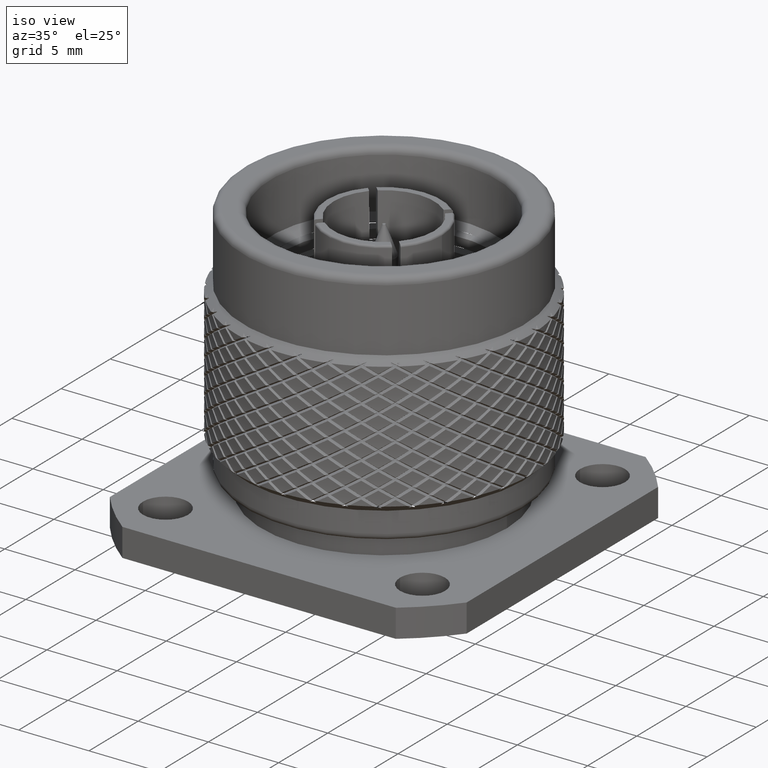
[diagram: clean part render]
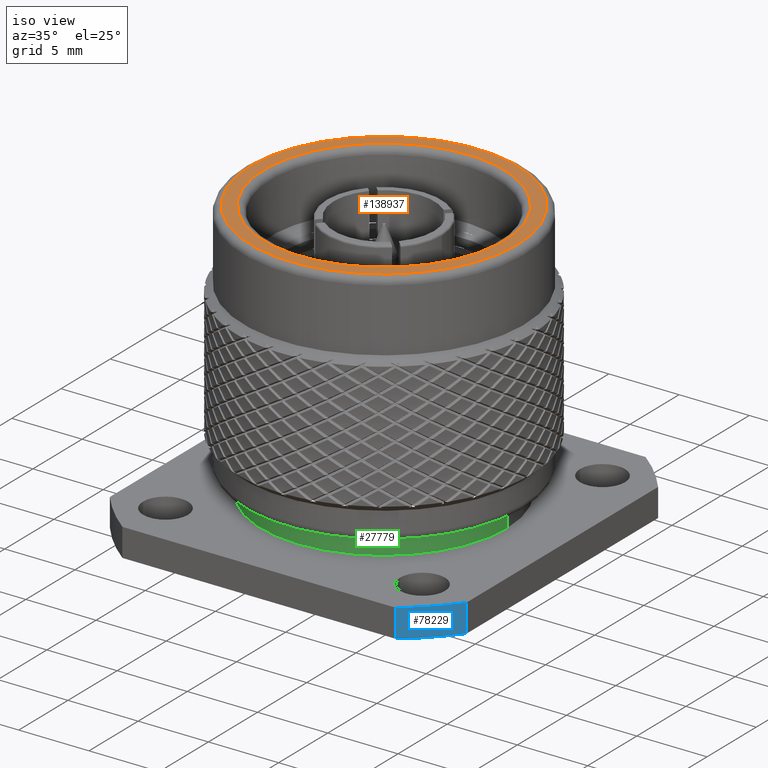
[diagram: same view with three faces highlighted in distinct colors, each labeled with its STEP entity id]
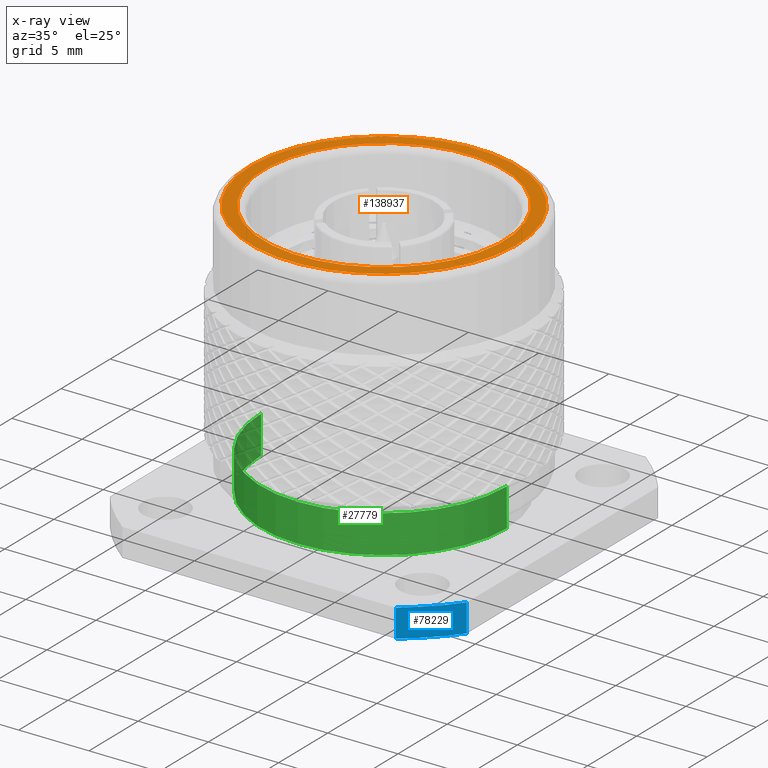
[diagram: x-ray of the same camera — body ghosted, the three highlighted faces saturated]
A machine part, iso view with three faces highlighted in distinct colors.
The next image is the same camera in x-ray (body ghosted, the three faces saturated) — at least one of them is partly hidden behind the body in this view.
Their STEP definitions:

[orange] entity #138937 — the highlighted planar face has unit normal (0, -0, 1).
#5148 = DIRECTION ( 'NONE',  ( -0.7503894050945661975, -0.6609960217140667948, 0.000000000000000000 ) ) ;
#9005 = DIRECTION ( 'NONE',  ( 2.341930812374878797E-31, -1.224646799147349509E-16, 1.000000000000000000 ) ) ;
#13430 = ORIENTED_EDGE ( 'NONE', *, *, #56814, .T. ) ;
#19198 = CARTESIAN_POINT ( 'NONE',  ( 6.051890552087677122, 5.330932915123947069, 20.45000000000000284 ) ) ;
#20942 = DIRECTION ( 'NONE',  ( -0.7503894050945661975, -0.6609960217140667948, 0.000000000000000000 ) ) ;
#27720 = VERTEX_POINT ( 'NONE', #47629 ) ;
#28406 = VERTEX_POINT ( 'NONE', #118610 ) ;
#32029 = DIRECTION ( 'NONE',  ( -2.341930812374878797E-31, 1.224646799147349509E-16, -1.000000000000000000 ) ) ;
#33536 = CARTESIAN_POINT ( 'NONE',  ( 3.851859888774471706E-30, -1.913510623667733929E-15, 20.45000000000000284 ) ) ;
#36281 = CARTESIAN_POINT ( 'NONE',  ( 3.851859888774471706E-30, -1.913510623667733929E-15, 20.45000000000000284 ) ) ;
#39973 = CIRCLE ( 'NONE', #82807, 8.565000000000001279 ) ;
#44920 = CARTESIAN_POINT ( 'NONE',  ( 7.128699348398380486, 6.279462206283633385, 20.45000000000000284 ) ) ;
#47039 = CIRCLE ( 'NONE', #148040, 8.565000000000001279 ) ;
#47629 = CARTESIAN_POINT ( 'NONE',  ( -6.427085254634960165, -5.661430925980984519, 20.45000000000000284 ) ) ;
#51115 = AXIS2_PLACEMENT_3D ( 'NONE', #19198, #67359, #55514 ) ;
#51986 = VERTEX_POINT ( 'NONE', #99249 ) ;
#55514 = DIRECTION ( 'NONE',  ( -0.7503894050945661975, -0.6609960217140667948, -8.094866622412617087E-17 ) ) ;
#56814 = EDGE_CURVE ( 'NONE', #115928, #28406, #60054, .T. ) ;
#57212 = DIRECTION ( 'NONE',  ( -0.7503894050945661975, -0.6609960217140666838, 0.000000000000000000 ) ) ;
#57295 = CIRCLE ( 'NONE', #135566, 9.500000000000001776 ) ;
#60054 = CIRCLE ( 'NONE', #97919, 9.500000000000001776 ) ;
#64031 = EDGE_CURVE ( 'NONE', #27720, #51986, #39973, .T. ) ;
#67359 = DIRECTION ( 'NONE',  ( 2.711709361697228081E-31, -1.224646799147349263E-16, 1.000000000000000000 ) ) ;
#78264 = ORIENTED_EDGE ( 'NONE', *, *, #64031, .T. ) ;
#79610 = ORIENTED_EDGE ( 'NONE', *, *, #88228, .T. ) ;
#82807 = AXIS2_PLACEMENT_3D ( 'NONE', #129925, #32029, #20942 ) ;
#84408 = DIRECTION ( 'NONE',  ( 2.341930812374878797E-31, -1.224646799147349509E-16, 1.000000000000000000 ) ) ;
#85172 = EDGE_LOOP ( 'NONE', ( #131220, #13430 ) ) ;
#88228 = EDGE_CURVE ( 'NONE', #51986, #27720, #47039, .T. ) ;
#97919 = AXIS2_PLACEMENT_3D ( 'NONE', #36281, #84408, #123942 ) ;
#99249 = CARTESIAN_POINT ( 'NONE',  ( 6.427085254634961053, 5.661430925980981854, 20.45000000000000284 ) ) ;
#101531 = CARTESIAN_POINT ( 'NONE',  ( 3.851859888774471706E-30, -1.913510623667733929E-15, 20.45000000000000284 ) ) ;
#114024 = PLANE ( 'NONE',  #51115 ) ;
#115928 = VERTEX_POINT ( 'NONE', #44920 ) ;
#118610 = CARTESIAN_POINT ( 'NONE',  ( -7.128699348398380486, -6.279462206283636938, 20.45000000000000284 ) ) ;
#119339 = EDGE_LOOP ( 'NONE', ( #78264, #79610 ) ) ;
#123942 = DIRECTION ( 'NONE',  ( -0.7503894050945661975, -0.6609960217140666838, 0.000000000000000000 ) ) ;
#127420 = FACE_BOUND ( 'NONE', #119339, .T. ) ;
#129925 = CARTESIAN_POINT ( 'NONE',  ( 3.851859888774471706E-30, -1.913510623667733929E-15, 20.45000000000000284 ) ) ;
#131220 = ORIENTED_EDGE ( 'NONE', *, *, #151749, .T. ) ;
#135566 = AXIS2_PLACEMENT_3D ( 'NONE', #33536, #9005, #57212 ) ;
#138937 = ADVANCED_FACE ( 'NONE', ( #127420, #151942 ), #114024, .T. ) ;
#141056 = DIRECTION ( 'NONE',  ( -2.341930812374878797E-31, 1.224646799147349509E-16, -1.000000000000000000 ) ) ;
#148040 = AXIS2_PLACEMENT_3D ( 'NONE', #101531, #141056, #5148 ) ;
#151749 = EDGE_CURVE ( 'NONE', #28406, #115928, #57295, .T. ) ;
#151942 = FACE_OUTER_BOUND ( 'NONE', #85172, .T. ) ;

[blue] entity #78229 — the highlighted cylindrical surface (partial cylindrical patch) has radius 16 mm, axis along (-0, -0, -1).
#4618 = CIRCLE ( 'NONE', #27359, 16.00000000000001421 ) ;
#4773 = LINE ( 'NONE', #112286, #131769 ) ;
#5629 = VERTEX_POINT ( 'NONE', #118450 ) ;
#6335 = DIRECTION ( 'NONE',  ( -0.000000000000000000, -0.000000000000000000, -1.000000000000000000 ) ) ;
#6665 = CARTESIAN_POINT ( 'NONE',  ( 0.000000000000000000, 0.000000000000000000, 2.000000000000000000 ) ) ;
#17717 = EDGE_CURVE ( 'NONE', #5629, #73727, #4618, .T. ) ;
#19745 = CARTESIAN_POINT ( 'NONE',  ( 12.69999999999999751, -9.731906288081489720, 1.999999999999999556 ) ) ;
#24559 = LINE ( 'NONE', #106722, #71322 ) ;
#27359 = AXIS2_PLACEMENT_3D ( 'NONE', #49525, #48754, #156242 ) ;
#28318 = ORIENTED_EDGE ( 'NONE', *, *, #90019, .T. ) ;
#30090 = VERTEX_POINT ( 'NONE', #64657 ) ;
#32261 = VERTEX_POINT ( 'NONE', #19745 ) ;
#33114 = DIRECTION ( 'NONE',  ( -1.000000000000000000, 0.000000000000000000, 0.000000000000000000 ) ) ;
#44932 = DIRECTION ( 'NONE',  ( -0.000000000000000000, -0.000000000000000000, -1.000000000000000000 ) ) ;
#48754 = DIRECTION ( 'NONE',  ( -0.000000000000000000, -0.000000000000000000, -1.000000000000000000 ) ) ;
#49525 = CARTESIAN_POINT ( 'NONE',  ( 0.000000000000000000, 0.000000000000000000, 0.000000000000000000 ) ) ;
#56783 = CARTESIAN_POINT ( 'NONE',  ( 0.000000000000000000, 0.000000000000000000, 0.000000000000000000 ) ) ;
#64657 = CARTESIAN_POINT ( 'NONE',  ( 9.731906288081482614, -12.70000000000000107, 1.999999999999999556 ) ) ;
#64865 = CIRCLE ( 'NONE', #92593, 16.00000000000000000 ) ;
#71322 = VECTOR ( 'NONE', #82985, 1000.000000000000000 ) ;
#73727 = VERTEX_POINT ( 'NONE', #124534 ) ;
#78229 = ADVANCED_FACE ( 'NONE', ( #96165 ), #131021, .T. ) ;
#82985 = DIRECTION ( 'NONE',  ( 0.000000000000000000, 0.000000000000000000, 1.000000000000000000 ) ) ;
#88833 = DIRECTION ( 'NONE',  ( -0.000000000000000000, -0.000000000000000000, -1.000000000000000000 ) ) ;
#90019 = EDGE_CURVE ( 'NONE', #32261, #30090, #64865, .T. ) ;
#92593 = AXIS2_PLACEMENT_3D ( 'NONE', #6665, #88833, #148189 ) ;
#95492 = ORIENTED_EDGE ( 'NONE', *, *, #139450, .T. ) ;
#96165 = FACE_OUTER_BOUND ( 'NONE', #120238, .T. ) ;
#102274 = ORIENTED_EDGE ( 'NONE', *, *, #17717, .F. ) ;
#106722 = CARTESIAN_POINT ( 'NONE',  ( 12.69999999999999751, -9.731906288081503931, 0.000000000000000000 ) ) ;
#108517 = ORIENTED_EDGE ( 'NONE', *, *, #143108, .T. ) ;
#112286 = CARTESIAN_POINT ( 'NONE',  ( 9.731906288081500378, -12.70000000000000107, 0.000000000000000000 ) ) ;
#118450 = CARTESIAN_POINT ( 'NONE',  ( 12.69999999999999751, -9.731906288081514589, 0.000000000000000000 ) ) ;
#120238 = EDGE_LOOP ( 'NONE', ( #102274, #95492, #28318, #108517 ) ) ;
#124534 = CARTESIAN_POINT ( 'NONE',  ( 9.731906288081512812, -12.69999999999999929, 0.000000000000000000 ) ) ;
#131021 = CYLINDRICAL_SURFACE ( 'NONE', #149358, 16.00000000000000711 ) ;
#131769 = VECTOR ( 'NONE', #6335, 1000.000000000000000 ) ;
#139450 = EDGE_CURVE ( 'NONE', #5629, #32261, #24559, .T. ) ;
#143108 = EDGE_CURVE ( 'NONE', #30090, #73727, #4773, .T. ) ;
#148189 = DIRECTION ( 'NONE',  ( -1.000000000000000000, 0.000000000000000000, 0.000000000000000000 ) ) ;
#149358 = AXIS2_PLACEMENT_3D ( 'NONE', #56783, #44932, #33114 ) ;
#156242 = DIRECTION ( 'NONE',  ( -1.000000000000000000, 0.000000000000000000, 0.000000000000000000 ) ) ;

[green] entity #27779 — the highlighted cylindrical surface (partial cylindrical patch) has radius 8.75 mm, axis along (-0, -0, -1).
#4822 = VERTEX_POINT ( 'NONE', #79993 ) ;
#9800 = AXIS2_PLACEMENT_3D ( 'NONE', #36331, #95543, #96317 ) ;
#9816 = AXIS2_PLACEMENT_3D ( 'NONE', #145594, #132930, #95763 ) ;
#16575 = ORIENTED_EDGE ( 'NONE', *, *, #32783, .F. ) ;
#20338 = ORIENTED_EDGE ( 'NONE', *, *, #127305, .T. ) ;
#23589 = CARTESIAN_POINT ( 'NONE',  ( 8.750000000000000000, 1.071565949253934124E-15, 4.699999999999999289 ) ) ;
#27779 = ADVANCED_FACE ( 'NONE', ( #38101 ), #84679, .T. ) ;
#31525 = DIRECTION ( 'NONE',  ( -1.000000000000000000, 0.000000000000000000, 0.000000000000000000 ) ) ;
#32783 = EDGE_CURVE ( 'NONE', #4822, #73879, #133280, .T. ) ;
#36331 = CARTESIAN_POINT ( 'NONE',  ( 0.000000000000000000, 0.000000000000000000, 4.699999999999999289 ) ) ;
#38101 = FACE_OUTER_BOUND ( 'NONE', #114588, .T. ) ;
#38508 = EDGE_CURVE ( 'NONE', #112241, #4822, #91030, .T. ) ;
#39896 = AXIS2_PLACEMENT_3D ( 'NONE', #68609, #117612, #31525 ) ;
#59144 = VERTEX_POINT ( 'NONE', #66629 ) ;
#66629 = CARTESIAN_POINT ( 'NONE',  ( -8.750000000000000000, 0.000000000000000000, 4.699999999999999289 ) ) ;
#68609 = CARTESIAN_POINT ( 'NONE',  ( 0.000000000000000000, 0.000000000000000000, 1.999999999999999112 ) ) ;
#69053 = DIRECTION ( 'NONE',  ( -0.000000000000000000, -0.000000000000000000, -1.000000000000000000 ) ) ;
#73879 = VERTEX_POINT ( 'NONE', #144752 ) ;
#78726 = ORIENTED_EDGE ( 'NONE', *, *, #118567, .T. ) ;
#79993 = CARTESIAN_POINT ( 'NONE',  ( 8.750000000000000000, 1.071565949253934124E-15, 1.999999999999999112 ) ) ;
#84679 = CYLINDRICAL_SURFACE ( 'NONE', #9816, 8.750000000000000000 ) ;
#91030 = LINE ( 'NONE', #102113, #154034 ) ;
#95543 = DIRECTION ( 'NONE',  ( -0.000000000000000000, -0.000000000000000000, -1.000000000000000000 ) ) ;
#95763 = DIRECTION ( 'NONE',  ( -1.000000000000000000, 0.000000000000000000, 0.000000000000000000 ) ) ;
#96317 = DIRECTION ( 'NONE',  ( -1.000000000000000000, 0.000000000000000000, 0.000000000000000000 ) ) ;
#99903 = LINE ( 'NONE', #139424, #138430 ) ;
#102113 = CARTESIAN_POINT ( 'NONE',  ( 8.750000000000000000, 1.071565949253934124E-15, 0.000000000000000000 ) ) ;
#112241 = VERTEX_POINT ( 'NONE', #23589 ) ;
#114588 = EDGE_LOOP ( 'NONE', ( #124819, #78726, #20338, #16575 ) ) ;
#117612 = DIRECTION ( 'NONE',  ( -0.000000000000000000, -0.000000000000000000, -1.000000000000000000 ) ) ;
#118567 = EDGE_CURVE ( 'NONE', #112241, #59144, #146094, .T. ) ;
#124819 = ORIENTED_EDGE ( 'NONE', *, *, #38508, .F. ) ;
#127305 = EDGE_CURVE ( 'NONE', #59144, #73879, #99903, .T. ) ;
#132930 = DIRECTION ( 'NONE',  ( -0.000000000000000000, -0.000000000000000000, -1.000000000000000000 ) ) ;
#133280 = CIRCLE ( 'NONE', #39896, 8.750000000000000000 ) ;
#137734 = DIRECTION ( 'NONE',  ( -0.000000000000000000, -0.000000000000000000, -1.000000000000000000 ) ) ;
#138430 = VECTOR ( 'NONE', #69053, 1000.000000000000000 ) ;
#139424 = CARTESIAN_POINT ( 'NONE',  ( -8.750000000000000000, 0.000000000000000000, 0.000000000000000000 ) ) ;
#144752 = CARTESIAN_POINT ( 'NONE',  ( -8.750000000000000000, 0.000000000000000000, 1.999999999999999112 ) ) ;
#145594 = CARTESIAN_POINT ( 'NONE',  ( 0.000000000000000000, 0.000000000000000000, 0.000000000000000000 ) ) ;
#146094 = CIRCLE ( 'NONE', #9800, 8.750000000000000000 ) ;
#154034 = VECTOR ( 'NONE', #137734, 1000.000000000000000 ) ;